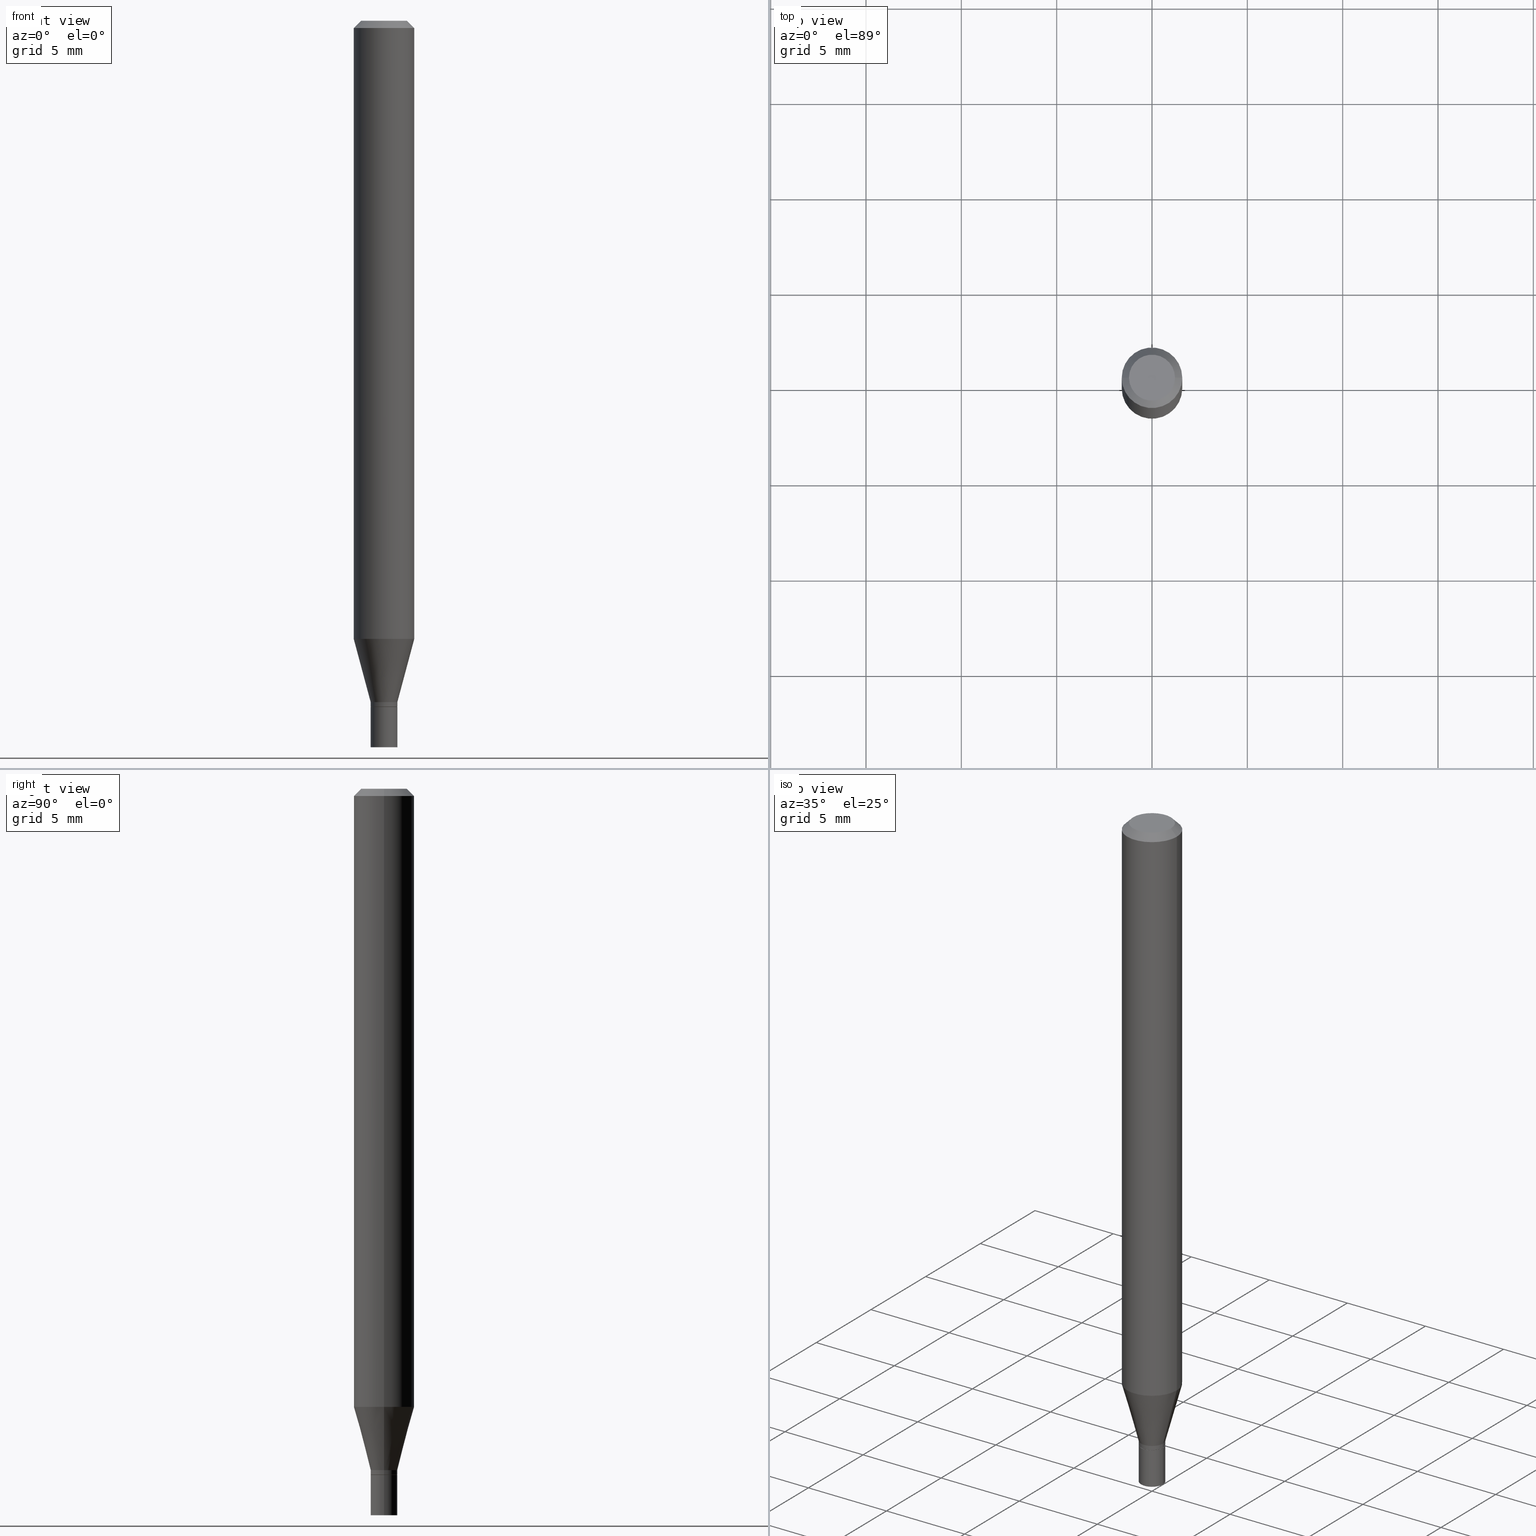
[diagram: canonical four-view strip — front | top / right | iso, engineering-drawing reading convention]
A machine part, canonical four-view strip (front | top / right | iso — engineering-drawing reading convention). The complete STEP part file that produces these views, byte-faithful:
ISO-10303-21;
HEADER;
FILE_DESCRIPTION (( 'STEP AP203' ),
    '1' );
FILE_NAME ('02382.STEP',
    '2024-03-18T20:19:26',
    ( '' ),
    ( '' ),
    'SwSTEP 2.0',
    'SolidWorks 2023',
    '' );
FILE_SCHEMA (( 'CONFIG_CONTROL_DESIGN' ));
ENDSEC;

DATA;
#1 = CARTESIAN_POINT ( 'NONE',  ( 3.668203209277705088E-31, -5.237222008264718399E-17, -0.01499999999999999944 ) ) ;
#2 = CARTESIAN_POINT ( 'NONE',  ( -0.02749999999999992381, -4.717114991418278561E-15, -1.407000000000000028 ) ) ;
#3 = CIRCLE ( 'NONE', #259, 0.02750000000000000014 ) ;
#4 = AXIS2_PLACEMENT_3D ( 'NONE', #119, #344, #20 ) ;
#5 = FACE_OUTER_BOUND ( 'NONE', #100, .T. ) ;
#6 = ORIENTED_EDGE ( 'NONE', *, *, #244, .F. ) ;
#7 = CARTESIAN_POINT ( 'NONE',  ( 3.668203209277704895E-29, -5.237222008264718177E-15, -1.500000000000000222 ) ) ;
#8 = CARTESIAN_POINT ( 'NONE',  ( 0.02699999999999999969, -5.135969049438267025E-15, -1.417000000000000259 ) ) ;
#9 = EDGE_CURVE ( 'NONE', #254, #135, #141, .T. ) ;
#10 = DIRECTION ( 'NONE',  ( 1.000000000000000000, -6.982962677686279332E-15, 0.000000000000000000 ) ) ;
#11 = VERTEX_POINT ( 'NONE', #342 ) ;
#12 = VECTOR ( 'NONE', #151, 39.37007874015748854 ) ;
#13 = LINE ( 'NONE', #138, #113 ) ;
#14 = VECTOR ( 'NONE', #29, 39.37007874015748143 ) ;
#15 = CARTESIAN_POINT ( 'NONE',  ( -0.02699999999999999969, -4.752933291311399907E-15, -1.417000000000000259 ) ) ;
#16 = ORIENTED_EDGE ( 'NONE', *, *, #21, .F. ) ;
#17 = FACE_OUTER_BOUND ( 'NONE', #106, .T. ) ;
#18 = EDGE_LOOP ( 'NONE', ( #278, #317, #411, #250 ) ) ;
#19 = AXIS2_PLACEMENT_3D ( 'NONE', #208, #90, #394 ) ;
#20 = DIRECTION ( 'NONE',  ( 1.000000000000000000, -6.982962677686265922E-15, 4.876176775795935793E-29 ) ) ;
#21 = EDGE_CURVE ( 'NONE', #130, #68, #432, .T. ) ;
#22 = FACE_OUTER_BOUND ( 'NONE', #220, .T. ) ;
#23 = CARTESIAN_POINT ( 'NONE',  ( 0.000000000000000000, 0.000000000000000000, 0.000000000000000000 ) ) ;
#24 = CC_DESIGN_APPROVAL ( #41, ( #269 ) ) ;
#25 = DESIGN_CONTEXT ( 'detailed design', #376, 'design' ) ;
#26 = APPROVAL_DATE_TIME ( #395, #41 ) ;
#27 = PERSON_AND_ORGANIZATION ( #109, #225 ) ;
#28 = ORIENTED_EDGE ( 'NONE', *, *, #216, .F. ) ;
#29 = DIRECTION ( 'NONE',  ( -2.445468806185136877E-29, 3.491481338843145188E-15, 1.000000000000000000 ) ) ;
#30 = AXIS2_PLACEMENT_3D ( 'NONE', #102, #405, #365 ) ;
#31 = AXIS2_PLACEMENT_3D ( 'NONE', #333, #192, #340 ) ;
#32 = EDGE_CURVE ( 'NONE', #169, #195, #237, .T. ) ;
#33 = COORDINATED_UNIVERSAL_TIME_OFFSET ( 5, 0, .BEHIND. ) ;
#34 = ORIENTED_EDGE ( 'NONE', *, *, #298, .F. ) ;
#35 = ORIENTED_EDGE ( 'NONE', *, *, #434, .F. ) ;
#36 = CIRCLE ( 'NONE', #346, 0.02750000000000000014 ) ;
#37 = EDGE_CURVE ( 'NONE', #169, #135, #464, .T. ) ;
#38 = DIRECTION ( 'NONE',  ( 1.000000000000000000, -6.982962677686267499E-15, 4.852736867747366768E-29 ) ) ;
#39 = CARTESIAN_POINT ( 'NONE',  ( 1.116338794773660675E-44, -1.593835938500131952E-30, -4.564927558880287530E-16 ) ) ;
#40 = ORIENTED_EDGE ( 'NONE', *, *, #155, .F. ) ;
#41 = APPROVAL ( #431, 'UNSPECIFIED' ) ;
#42 = CARTESIAN_POINT ( 'NONE',  ( 0.02699999999999999969, -5.135969049438267025E-15, -1.417000000000000259 ) ) ;
#43 = EDGE_LOOP ( 'NONE', ( #314, #262 ) ) ;
#44 = DIRECTION ( 'NONE',  ( 1.000000000000000000, -6.982962677686266711E-15, 4.876176775795935793E-29 ) ) ;
#45 = AXIS2_PLACEMENT_3D ( 'NONE', #212, #362, #110 ) ;
#46 = ORIENTED_EDGE ( 'NONE', *, *, #63, .F. ) ;
#47 = LOCAL_TIME ( 16, 19, 26.00000000000000000, #33 ) ;
#48 = EDGE_CURVE ( 'NONE', #254, #448, #443, .T. ) ;
#49 = EDGE_LOOP ( 'NONE', ( #255, #361, #46, #227 ) ) ;
#50 = CARTESIAN_POINT ( 'NONE',  ( 3.465229298364339647E-29, -4.947429057140738329E-15, -1.417000000000000259 ) ) ;
#51 = EDGE_CURVE ( 'NONE', #94, #11, #36, .T. ) ;
#52 = CIRCLE ( 'NONE', #30, 0.02699999999999999969 ) ;
#53 = CC_DESIGN_APPROVAL ( #341, ( #389 ) ) ;
#54 = ORIENTED_EDGE ( 'NONE', *, *, #241, .T. ) ;
#55 = DATE_TIME_ROLE ( 'classification_date' ) ;
#56 = AXIS2_PLACEMENT_3D ( 'NONE', #323, #325, #366 ) ;
#57 = PRODUCT_RELATED_PRODUCT_CATEGORY ( 'detail', '', ( #367 ) ) ;
#58 = PERSON_AND_ORGANIZATION ( #109, #225 ) ;
#59 = ORIENTED_EDGE ( 'NONE', *, *, #391, .F. ) ;
#60 = PERSON_AND_ORGANIZATION ( #109, #225 ) ;
#61 = ORIENTED_EDGE ( 'NONE', *, *, #229, .T. ) ;
#62 = APPROVAL_DATE_TIME ( #166, #341 ) ;
#63 = EDGE_CURVE ( 'NONE', #195, #223, #103, .T. ) ;
#64 = ORIENTED_EDGE ( 'NONE', *, *, #115, .F. ) ;
#65 = VECTOR ( 'NONE', #369, 39.37007874015748143 ) ;
#66 = APPROVAL_PERSON_ORGANIZATION ( #310, #101, #390 ) ;
#67 = CARTESIAN_POINT ( 'NONE',  ( -0.06250000000000000000, -4.012361532643800373E-15, -1.276378221735089191 ) ) ;
#68 = VERTEX_POINT ( 'NONE', #107 ) ;
#69 = FACE_OUTER_BOUND ( 'NONE', #162, .T. ) ;
#70 = CARTESIAN_POINT ( 'NONE',  ( 0.02749999999999992381, -1.920314736363718267E-16, 1.340948613343878735E-30 ) ) ;
#71 = DIRECTION ( 'NONE',  ( 1.000000000000000000, -6.982962677686262766E-15, 0.000000000000000000 ) ) ;
#72 = AXIS2_PLACEMENT_3D ( 'NONE', #118, #82, #231 ) ;
#73 = DIRECTION ( 'NONE',  ( -2.445468806185136597E-29, 3.491481338843145583E-15, 1.000000000000000000 ) ) ;
#74 = CARTESIAN_POINT ( 'NONE',  ( -0.06250000000000000000, -1.810322271438192615E-15, -0.01499999999999999944 ) ) ;
#75 = VERTEX_POINT ( 'NONE', #416 ) ;
#76 = CARTESIAN_POINT ( 'NONE',  ( 0.06250000000000000000, -4.888073874380388472E-16, -0.01499999999999999944 ) ) ;
#77 = EDGE_LOOP ( 'NONE', ( #290, #54, #442, #64 ) ) ;
#78 = LINE ( 'NONE', #143, #312 ) ;
#79 = ORIENTED_EDGE ( 'NONE', *, *, #434, .T. ) ;
#80 = ORIENTED_EDGE ( 'NONE', *, *, #385, .T. ) ;
#81 =( CONVERSION_BASED_UNIT ( 'INCH', #305 ) LENGTH_UNIT ( ) NAMED_UNIT ( #92 ) );
#82 = DIRECTION ( 'NONE',  ( -2.445468806185136597E-29, 3.491481338843145583E-15, 1.000000000000000000 ) ) ;
#83 = DIRECTION ( 'NONE',  ( 1.000000000000000000, -6.982962677686266711E-15, 0.000000000000000000 ) ) ;
#84 = EDGE_CURVE ( 'NONE', #223, #195, #150, .T. ) ;
#85 =( GEOMETRIC_REPRESENTATION_CONTEXT ( 3 ) GLOBAL_UNCERTAINTY_ASSIGNED_CONTEXT ( ( #197 ) ) GLOBAL_UNIT_ASSIGNED_CONTEXT ( ( #81, #421, #419 ) ) REPRESENTATION_CONTEXT ( 'NONE', 'WORKASPACE' ) );
#86 = MECHANICAL_CONTEXT ( 'NONE', #116, 'mechanical' ) ;
#87 = ADVANCED_BREP_SHAPE_REPRESENTATION ( '02382', ( #393, #375, #466 ), #85 ) ;
#88 = AXIS2_PLACEMENT_3D ( 'NONE', #321, #253, #38 ) ;
#89 = AXIS2_PLACEMENT_3D ( 'NONE', #50, #156, #455 ) ;
#90 = DIRECTION ( 'NONE',  ( -2.445468806185136597E-29, 3.491481338843145583E-15, 1.000000000000000000 ) ) ;
#91 = APPROVAL_STATUS ( 'not_yet_approved' ) ;
#92 = DIMENSIONAL_EXPONENTS ( 1.000000000000000000, 0.000000000000000000, 0.000000000000000000, 0.000000000000000000, 0.000000000000000000, 0.000000000000000000, 0.000000000000000000 ) ;
#93 = ADVANCED_FACE ( 'NONE', ( #69 ), #309, .T. ) ;
#94 = VERTEX_POINT ( 'NONE', #303 ) ;
#95 = DIRECTION ( 'NONE',  ( 1.000000000000000000, -6.982962677686267499E-15, 4.876176775795936353E-29 ) ) ;
#96 = DATE_AND_TIME ( #198, #142 ) ;
#97 = AXIS2_PLACEMENT_3D ( 'NONE', #146, #284, #243 ) ;
#98 = CARTESIAN_POINT ( 'NONE',  ( 3.440774610302487541E-29, -4.912514243752305891E-15, -1.407000000000000028 ) ) ;
#99 = FACE_OUTER_BOUND ( 'NONE', #111, .T. ) ;
#100 = EDGE_LOOP ( 'NONE', ( #328, #451, #28, #200 ) ) ;
#101 = APPROVAL ( #131, 'UNSPECIFIED' ) ;
#102 = CARTESIAN_POINT ( 'NONE',  ( 3.465229298364339647E-29, -4.947429057140738329E-15, -1.417000000000000259 ) ) ;
#103 = CIRCLE ( 'NONE', #406, 0.06250000000000000000 ) ;
#104 = CONICAL_SURFACE ( 'NONE', #268, 0.02699999999999999969, 0.7853981633974739252 ) ;
#105 = CARTESIAN_POINT ( 'NONE',  ( 3.465229298364339647E-29, -4.947429057140738329E-15, -1.417000000000000259 ) ) ;
#106 = EDGE_LOOP ( 'NONE', ( #79, #211, #297, #34 ) ) ;
#107 = CARTESIAN_POINT ( 'NONE',  ( 0.02749999999999992381, -5.137714790107688529E-15, -1.416500000000000314 ) ) ;
#108 = DIRECTION ( 'NONE',  ( -2.445468806185136597E-29, 3.491481338843145583E-15, 1.000000000000000000 ) ) ;
#109 = PERSON ( 'UNSPECIFIED', 'UNSPECIFIED', 'UNSPECIFIED', ('UNSPECIFIED'), ('UNSPECIFIED'), ('UNSPECIFIED') ) ;
#110 = DIRECTION ( 'NONE',  ( 1.000000000000000000, -6.982962677686264344E-15, 0.000000000000000000 ) ) ;
#111 = EDGE_LOOP ( 'NONE', ( #289, #282, #308, #437 ) ) ;
#112 = DIRECTION ( 'NONE',  ( 1.000000000000000000, -6.982962677686266711E-15, 4.876176775795935793E-29 ) ) ;
#113 = VECTOR ( 'NONE', #245, 39.37007874015748143 ) ;
#114 = DIRECTION ( 'NONE',  ( 1.000000000000000000, -6.982962677686266711E-15, 4.876176775795935793E-29 ) ) ;
#115 = EDGE_CURVE ( 'NONE', #11, #94, #277, .T. ) ;
#116 = APPLICATION_CONTEXT ( 'configuration controlled 3d designs of mechanical parts and assemblies' ) ;
#117 = CARTESIAN_POINT ( 'NONE',  ( 0.000000000000000000, 0.000000000000000000, 0.000000000000000000 ) ) ;
#118 = CARTESIAN_POINT ( 'NONE',  ( 0.000000000000000000, 0.000000000000000000, 0.000000000000000000 ) ) ;
#119 = CARTESIAN_POINT ( 'NONE',  ( 3.465229298364339647E-29, -4.947429057140738329E-15, -1.417000000000000259 ) ) ;
#120 = CARTESIAN_POINT ( 'NONE',  ( 3.464006563961246846E-29, -4.945683316471316826E-15, -1.416500000000000314 ) ) ;
#121 = CYLINDRICAL_SURFACE ( 'NONE', #286, 0.02750000000000000014 ) ;
#122 = VECTOR ( 'NONE', #280, 39.37007874015748143 ) ;
#123 = DIRECTION ( 'NONE',  ( -2.445468806185136597E-29, 3.491481338843145583E-15, 1.000000000000000000 ) ) ;
#124 = DIRECTION ( 'NONE',  ( -2.445468806185136597E-29, 3.491481338843145583E-15, 1.000000000000000000 ) ) ;
#125 = ADVANCED_FACE ( 'NONE', ( #266 ), #449, .T. ) ;
#126 = CALENDAR_DATE ( 2024, 18, 3 ) ;
#127 = CONICAL_SURFACE ( 'NONE', #424, 0.06250000000000000000, 0.7853981633974636001 ) ;
#128 = ADVANCED_FACE ( 'NONE', ( #218 ), #295, .T. ) ;
#129 = SHAPE_DEFINITION_REPRESENTATION ( #221, #87 ) ;
#130 = VERTEX_POINT ( 'NONE', #188 ) ;
#131 = APPROVAL_STATUS ( 'not_yet_approved' ) ;
#132 = DIRECTION ( 'NONE',  ( -2.445468806185136597E-29, 3.491481338843145583E-15, 1.000000000000000000 ) ) ;
#133 = CARTESIAN_POINT ( 'NONE',  ( -0.02749999999999992381, -4.364738262031039467E-15, -1.407000000000000028 ) ) ;
#134 = ADVANCED_FACE ( 'NONE', ( #165 ), #127, .T. ) ;
#135 = VERTEX_POINT ( 'NONE', #67 ) ;
#136 = CC_DESIGN_DATE_AND_TIME_ASSIGNMENT ( #96, #161, ( #269 ) ) ;
#137 = DIRECTION ( 'NONE',  ( 1.000000000000000000, -6.982962677686261189E-15, 0.000000000000000000 ) ) ;
#138 = CARTESIAN_POINT ( 'NONE',  ( 0.06250000000000000000, -4.811533449433679005E-16, -0.01499999999999999944 ) ) ;
#139 = ORIENTED_EDGE ( 'NONE', *, *, #216, .T. ) ;
#140 = AXIS2_PLACEMENT_3D ( 'NONE', #412, #327, #440 ) ;
#141 = LINE ( 'NONE', #2, #12 ) ;
#142 = LOCAL_TIME ( 16, 19, 26.00000000000000000, #240 ) ;
#143 = CARTESIAN_POINT ( 'NONE',  ( -0.02699999999999999969, -4.755582518485511109E-15, -1.417000000000000259 ) ) ;
#144 = ORIENTED_EDGE ( 'NONE', *, *, #115, .T. ) ;
#145 = CARTESIAN_POINT ( 'NONE',  ( 0.000000000000000000, 0.000000000000000000, 0.000000000000000000 ) ) ;
#146 = CARTESIAN_POINT ( 'NONE',  ( 3.121343126147216343E-29, -4.456450742493863778E-15, -1.276378221735089191 ) ) ;
#147 = ORIENTED_EDGE ( 'NONE', *, *, #241, .F. ) ;
#148 = CARTESIAN_POINT ( 'NONE',  ( 3.316907271900976096E-16, 0.04749999999999999362, -3.940917415390638222E-16 ) ) ;
#149 = ORIENTED_EDGE ( 'NONE', *, *, #456, .T. ) ;
#150 = CIRCLE ( 'NONE', #441, 0.06250000000000000000 ) ;
#151 = DIRECTION ( 'NONE',  ( -0.2588190451025211836, 5.211531920934547886E-15, 0.9659258262890679791 ) ) ;
#152 = FACE_OUTER_BOUND ( 'NONE', #43, .T. ) ;
#153 = CARTESIAN_POINT ( 'NONE',  ( 3.465229298364339647E-29, -4.947429057140738329E-15, -1.417000000000000259 ) ) ;
#154 = FACE_OUTER_BOUND ( 'NONE', #360, .T. ) ;
#155 = EDGE_CURVE ( 'NONE', #448, #169, #210, .T. ) ;
#156 = DIRECTION ( 'NONE',  ( -2.445468806185136597E-29, 3.491481338843145583E-15, 1.000000000000000000 ) ) ;
#157 = VECTOR ( 'NONE', #199, 39.37007874015748143 ) ;
#158 = PERSON_AND_ORGANIZATION_ROLE ( 'design_owner' ) ;
#159 = DATE_AND_TIME ( #126, #339 ) ;
#160 = EDGE_CURVE ( 'NONE', #68, #130, #224, .T. ) ;
#161 = DATE_TIME_ROLE ( 'creation_date' ) ;
#162 = EDGE_LOOP ( 'NONE', ( #324, #252, #383, #174 ) ) ;
#163 = CIRCLE ( 'NONE', #88, 0.04749999999999999362 ) ;
#164 = COORDINATED_UNIVERSAL_TIME_OFFSET ( 5, 0, .BEHIND. ) ;
#165 = FACE_OUTER_BOUND ( 'NONE', #396, .T. ) ;
#166 = DATE_AND_TIME ( #397, #207 ) ;
#167 = EDGE_CURVE ( 'NONE', #415, #94, #387, .T. ) ;
#168 = CARTESIAN_POINT ( 'NONE',  ( -0.02750000000000000014, 1.953992523340275521E-16, -1.352707149820099181E-30 ) ) ;
#169 = VERTEX_POINT ( 'NONE', #300 ) ;
#170 = CONICAL_SURFACE ( 'NONE', #242, 0.02699999999999999969, 0.7853981633974739252 ) ;
#171 = LINE ( 'NONE', #42, #122 ) ;
#172 = ORIENTED_EDGE ( 'NONE', *, *, #414, .F. ) ;
#173 = DIRECTION ( 'NONE',  ( -2.445468806185136597E-29, 3.491481338843145583E-15, 1.000000000000000000 ) ) ;
#174 = ORIENTED_EDGE ( 'NONE', *, *, #48, .F. ) ;
#175 = ADVANCED_FACE ( 'NONE', ( #402 ), #247, .T. ) ;
#176 = LINE ( 'NONE', #283, #381 ) ;
#177 = DIRECTION ( 'NONE',  ( -2.445468806185136877E-29, 3.491481338843145188E-15, 1.000000000000000000 ) ) ;
#178 = ORIENTED_EDGE ( 'NONE', *, *, #298, .T. ) ;
#179 = PLANE ( 'NONE',  #56 ) ;
#180 = EDGE_CURVE ( 'NONE', #135, #223, #235, .T. ) ;
#181 = PLANE ( 'NONE',  #31 ) ;
#182 = VERTEX_POINT ( 'NONE', #8 ) ;
#183 = CC_DESIGN_PERSON_AND_ORGANIZATION_ASSIGNMENT ( #205, #201, ( #269 ) ) ;
#184 = CARTESIAN_POINT ( 'NONE',  ( 0.02749999999999992381, -5.104545717388677595E-15, -1.407000000000000028 ) ) ;
#185 = DIRECTION ( 'NONE',  ( 0.000000000000000000, 0.000000000000000000, 1.000000000000000000 ) ) ;
#186 = AXIS2_PLACEMENT_3D ( 'NONE', #403, #445, #222 ) ;
#187 = APPROVAL_PERSON_ORGANIZATION ( #271, #41, #358 ) ;
#188 = CARTESIAN_POINT ( 'NONE',  ( -0.02749999999999992381, -4.750284064137290284E-15, -1.416500000000000314 ) ) ;
#189 = DIRECTION ( 'NONE',  ( 1.000000000000000000, -6.982962677686279332E-15, 0.000000000000000000 ) ) ;
#190 = EDGE_LOOP ( 'NONE', ( #446, #61, #228, #334 ) ) ;
#191 = ADVANCED_FACE ( 'NONE', ( #246 ), #444, .T. ) ;
#192 = DIRECTION ( 'NONE',  ( -2.438088387897960049E-29, 3.491481338843145188E-15, 1.000000000000000000 ) ) ;
#193 = APPLICATION_PROTOCOL_DEFINITION ( 'international standard', 'config_control_design', 1994, #376 ) ;
#194 = VECTOR ( 'NONE', #177, 39.37007874015748143 ) ;
#195 = VERTEX_POINT ( 'NONE', #76 ) ;
#196 = DIRECTION ( 'NONE',  ( 1.000000000000000000, -6.982962677686264344E-15, 0.000000000000000000 ) ) ;
#197 = UNCERTAINTY_MEASURE_WITH_UNIT (LENGTH_MEASURE( 1.000000000000000082E-05 ), #81, 'distance_accuracy_value', 'NONE');
#198 = CALENDAR_DATE ( 2024, 18, 3 ) ;
#199 = DIRECTION ( 'NONE',  ( -2.445468806185136877E-29, 3.491481338843145188E-15, 1.000000000000000000 ) ) ;
#200 = ORIENTED_EDGE ( 'NONE', *, *, #315, .F. ) ;
#201 = PERSON_AND_ORGANIZATION_ROLE ( 'creator' ) ;
#202 = VERTEX_POINT ( 'NONE', #217 ) ;
#203 = EDGE_LOOP ( 'NONE', ( #139, #368, #400, #40 ) ) ;
#204 = CARTESIAN_POINT ( 'NONE',  ( 0.02749999999999992381, -5.104545717388677595E-15, -1.407000000000000028 ) ) ;
#205 = PERSON_AND_ORGANIZATION ( #109, #225 ) ;
#206 = AXIS2_PLACEMENT_3D ( 'NONE', #153, #301, #374 ) ;
#207 = LOCAL_TIME ( 16, 19, 26.00000000000000000, #164 ) ;
#208 = CARTESIAN_POINT ( 'NONE',  ( 3.440774610302487541E-29, -4.912514243752305891E-15, -1.407000000000000028 ) ) ;
#209 = ADVANCED_FACE ( 'NONE', ( #99 ), #398, .T. ) ;
#210 = LINE ( 'NONE', #204, #338 ) ;
#211 = ORIENTED_EDGE ( 'NONE', *, *, #256, .T. ) ;
#212 = CARTESIAN_POINT ( 'NONE',  ( 3.440774610302487541E-29, -4.912514243752305891E-15, -1.407000000000000028 ) ) ;
#213 = ORIENTED_EDGE ( 'NONE', *, *, #84, .T. ) ;
#214 = VECTOR ( 'NONE', #288, 39.37007874015748143 ) ;
#215 = VECTOR ( 'NONE', #265, 39.37007874015748143 ) ;
#216 = EDGE_CURVE ( 'NONE', #448, #254, #459, .T. ) ;
#217 = CARTESIAN_POINT ( 'NONE',  ( -0.02750000000000000014, -4.896926280368699739E-15, -1.500000000000000222 ) ) ;
#218 = FACE_OUTER_BOUND ( 'NONE', #18, .T. ) ;
#219 = LINE ( 'NONE', #168, #65 ) ;
#220 = EDGE_LOOP ( 'NONE', ( #35, #413 ) ) ;
#221 = PRODUCT_DEFINITION_SHAPE ( 'NONE', 'NONE',  #269 ) ;
#222 = DIRECTION ( 'NONE',  ( 1.000000000000000000, -6.982962677686264344E-15, 0.000000000000000000 ) ) ;
#223 = VERTEX_POINT ( 'NONE', #74 ) ;
#224 = CIRCLE ( 'NONE', #354, 0.02749999999999992381 ) ;
#225 = ORGANIZATION ( 'UNSPECIFIED', 'UNSPECIFIED', '' ) ;
#226 = CARTESIAN_POINT ( 'NONE',  ( 0.000000000000000000, 0.000000000000000000, 0.000000000000000000 ) ) ;
#227 = ORIENTED_EDGE ( 'NONE', *, *, #32, .F. ) ;
#228 = ORIENTED_EDGE ( 'NONE', *, *, #51, .F. ) ;
#229 = EDGE_CURVE ( 'NONE', #202, #11, #219, .T. ) ;
#230 = LINE ( 'NONE', #261, #215 ) ;
#231 = DIRECTION ( 'NONE',  ( 1.000000000000000000, -6.982962677686266711E-15, 4.876176775795935793E-29 ) ) ;
#232 = AXIS2_PLACEMENT_3D ( 'NONE', #120, #123, #463 ) ;
#233 = ADVANCED_FACE ( 'NONE', ( #251 ), #179, .F. ) ;
#234 = AXIS2_PLACEMENT_3D ( 'NONE', #343, #124, #189 ) ;
#235 = LINE ( 'NONE', #285, #194 ) ;
#236 = CARTESIAN_POINT ( 'NONE',  ( 3.465229298364339647E-29, -4.947429057140738329E-15, -1.417000000000000259 ) ) ;
#237 = LINE ( 'NONE', #348, #14 ) ;
#238 = CIRCLE ( 'NONE', #97, 0.06250000000000000000 ) ;
#239 = APPROVAL_ROLE ( '' ) ;
#240 = COORDINATED_UNIVERSAL_TIME_OFFSET ( 5, 0, .BEHIND. ) ;
#241 = EDGE_CURVE ( 'NONE', #202, #415, #3, .T. ) ;
#242 = AXIS2_PLACEMENT_3D ( 'NONE', #105, #436, #137 ) ;
#243 = DIRECTION ( 'NONE',  ( 1.000000000000000000, -6.982962677686262766E-15, 0.000000000000000000 ) ) ;
#244 = EDGE_CURVE ( 'NONE', #373, #195, #13, .T. ) ;
#245 = DIRECTION ( 'NONE',  ( 0.7071067811865583419, -7.319954787623292333E-15, -0.7071067811865366926 ) ) ;
#246 = FACE_OUTER_BOUND ( 'NONE', #77, .T. ) ;
#247 = CONICAL_SURFACE ( 'NONE', #19, 0.02749999999999992381, 0.2617993877991499074 ) ;
#248 = PRODUCT_DEFINITION_FORMATION_WITH_SPECIFIED_SOURCE ( 'ANY', '', #367, .NOT_KNOWN. ) ;
#249 = DIRECTION ( 'NONE',  ( 1.000000000000000000, -6.982962677686267499E-15, 4.876176775795936353E-29 ) ) ;
#250 = ORIENTED_EDGE ( 'NONE', *, *, #84, .F. ) ;
#251 = FACE_OUTER_BOUND ( 'NONE', #409, .T. ) ;
#252 = ORIENTED_EDGE ( 'NONE', *, *, #21, .T. ) ;
#253 = DIRECTION ( 'NONE',  ( -2.445468806185136597E-29, 3.491481338843145583E-15, 1.000000000000000000 ) ) ;
#254 = VERTEX_POINT ( 'NONE', #133 ) ;
#255 = ORIENTED_EDGE ( 'NONE', *, *, #37, .T. ) ;
#256 = EDGE_CURVE ( 'NONE', #294, #130, #78, .T. ) ;
#257 = DIRECTION ( 'NONE',  ( -2.445468806185136597E-29, 3.491481338843145583E-15, 1.000000000000000000 ) ) ;
#258 = CC_DESIGN_PERSON_AND_ORGANIZATION_ASSIGNMENT ( #58, #425, ( #248 ) ) ;
#259 = AXIS2_PLACEMENT_3D ( 'NONE', #7, #173, #10 ) ;
#260 = CIRCLE ( 'NONE', #234, 0.02750000000000000014 ) ;
#261 = CARTESIAN_POINT ( 'NONE',  ( -0.06250000000000000000, 3.840629472727444916E-16, -0.01499999999999999944 ) ) ;
#262 = ORIENTED_EDGE ( 'NONE', *, *, #352, .T. ) ;
#263 = DIRECTION ( 'NONE',  ( 1.000000000000000000, 0.000000000000000000, 0.000000000000000000 ) ) ;
#264 = CARTESIAN_POINT ( 'NONE',  ( 3.668203209277705088E-31, -5.237222008264718399E-17, -0.01499999999999999944 ) ) ;
#265 = DIRECTION ( 'NONE',  ( -0.7071067811865583419, 2.468850131082370262E-15, -0.7071067811865366926 ) ) ;
#266 = FACE_OUTER_BOUND ( 'NONE', #49, .T. ) ;
#267 = AXIS2_PLACEMENT_3D ( 'NONE', #226, #108, #249 ) ;
#268 = AXIS2_PLACEMENT_3D ( 'NONE', #236, #461, #336 ) ;
#269 = PRODUCT_DEFINITION ( 'UNKNOWN', '', #248, #25 ) ;
#270 = DIRECTION ( 'NONE',  ( -1.000000000000000000, 6.982962677686265922E-15, -4.876176775795935793E-29 ) ) ;
#271 = PERSON_AND_ORGANIZATION ( #109, #225 ) ;
#272 = AXIS2_PLACEMENT_3D ( 'NONE', #98, #132, #356 ) ;
#273 = CARTESIAN_POINT ( 'NONE',  ( 0.000000000000000000, 0.000000000000000000, 0.000000000000000000 ) ) ;
#274 = COORDINATED_UNIVERSAL_TIME_OFFSET ( 5, 0, .BEHIND. ) ;
#275 = DATE_AND_TIME ( #349, #47 ) ;
#276 = EDGE_CURVE ( 'NONE', #135, #169, #238, .T. ) ;
#277 = CIRCLE ( 'NONE', #206, 0.02750000000000000014 ) ;
#278 = ORIENTED_EDGE ( 'NONE', *, *, #180, .F. ) ;
#279 = CC_DESIGN_APPROVAL ( #101, ( #248 ) ) ;
#280 = DIRECTION ( 'NONE',  ( 0.7071067811865656694, -2.468850131082446387E-15, 0.7071067811865294761 ) ) ;
#281 = DIRECTION ( 'NONE',  ( -2.445468806185136597E-29, 3.491481338843145583E-15, 1.000000000000000000 ) ) ;
#282 = ORIENTED_EDGE ( 'NONE', *, *, #244, .T. ) ;
#283 = CARTESIAN_POINT ( 'NONE',  ( -0.02749999999999992381, 1.953992523340270098E-16, -1.352707149820095328E-30 ) ) ;
#284 = DIRECTION ( 'NONE',  ( -2.445468806185136597E-29, 3.491481338843145583E-15, 1.000000000000000000 ) ) ;
#285 = CARTESIAN_POINT ( 'NONE',  ( -0.06250000000000000000, 4.440892098500626162E-16, -3.074334431409316114E-30 ) ) ;
#286 = AXIS2_PLACEMENT_3D ( 'NONE', #23, #453, #112 ) ;
#287 = CIRCLE ( 'NONE', #89, 0.02699999999999999969 ) ;
#288 = DIRECTION ( 'NONE',  ( -2.445468806185136877E-29, 3.491481338843145188E-15, 1.000000000000000000 ) ) ;
#289 = ORIENTED_EDGE ( 'NONE', *, *, #352, .F. ) ;
#290 = ORIENTED_EDGE ( 'NONE', *, *, #229, .F. ) ;
#291 = ADVANCED_FACE ( 'NONE', ( #331 ), #170, .T. ) ;
#292 = DIRECTION ( 'NONE',  ( -0.7071067811865656694, 7.493145998870420424E-15, 0.7071067811865294761 ) ) ;
#293 = DIRECTION ( 'NONE',  ( -2.445468806185136597E-29, 3.491481338843145583E-15, 1.000000000000000000 ) ) ;
#294 = VERTEX_POINT ( 'NONE', #15 ) ;
#295 = CYLINDRICAL_SURFACE ( 'NONE', #72, 0.06250000000000000000 ) ;
#296 = AXIS2_PLACEMENT_3D ( 'NONE', #145, #73, #44 ) ;
#297 = ORIENTED_EDGE ( 'NONE', *, *, #160, .F. ) ;
#298 = EDGE_CURVE ( 'NONE', #182, #68, #171, .T. ) ;
#299 = PLANE ( 'NONE',  #460 ) ;
#300 = CARTESIAN_POINT ( 'NONE',  ( 0.06250000000000000000, -4.892885909849253869E-15, -1.276378221735089191 ) ) ;
#301 = DIRECTION ( 'NONE',  ( -2.445468806185136597E-29, 3.491481338843145583E-15, 1.000000000000000000 ) ) ;
#302 = DIRECTION ( 'NONE',  ( 1.000000000000000000, -6.982962677686267499E-15, 4.852736867747366768E-29 ) ) ;
#303 = CARTESIAN_POINT ( 'NONE',  ( 0.02750000000000000014, -5.139460530777110821E-15, -1.417000000000000259 ) ) ;
#304 = AXIS2_PLACEMENT_3D ( 'NONE', #39, #293, #302 ) ;
#305 = LENGTH_MEASURE_WITH_UNIT ( LENGTH_MEASURE( 0.02539999999999999897 ), #384 );
#306 = APPROVAL_DATE_TIME ( #275, #101 ) ;
#307 = EDGE_CURVE ( 'NONE', #130, #254, #176, .T. ) ;
#308 = ORIENTED_EDGE ( 'NONE', *, *, #63, .T. ) ;
#309 = CYLINDRICAL_SURFACE ( 'NONE', #371, 0.02749999999999992381 ) ;
#310 = PERSON_AND_ORGANIZATION ( #109, #225 ) ;
#311 = CLOSED_SHELL ( 'NONE', ( #439, #420, #191, #233 ) ) ;
#312 = VECTOR ( 'NONE', #292, 39.37007874015748143 ) ;
#313 = CC_DESIGN_SECURITY_CLASSIFICATION ( #389, ( #248 ) ) ;
#314 = ORIENTED_EDGE ( 'NONE', *, *, #391, .T. ) ;
#315 = EDGE_CURVE ( 'NONE', #68, #448, #410, .T. ) ;
#316 = CARTESIAN_POINT ( 'NONE',  ( 3.465229298364339647E-29, -4.947429057140738329E-15, -1.417000000000000259 ) ) ;
#317 = ORIENTED_EDGE ( 'NONE', *, *, #276, .T. ) ;
#318 = CARTESIAN_POINT ( 'NONE',  ( 3.121343126147216343E-29, -4.456450742493863778E-15, -1.276378221735089191 ) ) ;
#319 = CALENDAR_DATE ( 2024, 18, 3 ) ;
#320 = ORIENTED_EDGE ( 'NONE', *, *, #256, .F. ) ;
#321 = CARTESIAN_POINT ( 'NONE',  ( 1.116338794773660675E-44, -1.593835938500131952E-30, -4.564927558880287530E-16 ) ) ;
#322 = AXIS2_PLACEMENT_3D ( 'NONE', #318, #404, #71 ) ;
#323 = CARTESIAN_POINT ( 'NONE',  ( 1.920314736364070050E-16, 0.02749999999999505271, -1.417000000000000259 ) ) ;
#324 = ORIENTED_EDGE ( 'NONE', *, *, #307, .F. ) ;
#325 = DIRECTION ( 'NONE',  ( 2.438088387897960049E-29, -3.491481338843145188E-15, -1.000000000000000000 ) ) ;
#326 = ORIENTED_EDGE ( 'NONE', *, *, #9, .F. ) ;
#327 = DIRECTION ( 'NONE',  ( 2.445468806185136597E-29, -3.491481338843145583E-15, -1.000000000000000000 ) ) ;
#328 = ORIENTED_EDGE ( 'NONE', *, *, #160, .T. ) ;
#329 = CIRCLE ( 'NONE', #304, 0.04749999999999999362 ) ;
#330 = ADVANCED_FACE ( 'NONE', ( #5 ), #438, .T. ) ;
#331 = FACE_OUTER_BOUND ( 'NONE', #351, .T. ) ;
#332 = ORIENTED_EDGE ( 'NONE', *, *, #276, .F. ) ;
#333 = CARTESIAN_POINT ( 'NONE',  ( 3.576687321579069994E-29, -5.368277968210015545E-15, -1.500000000000000222 ) ) ;
#334 = ORIENTED_EDGE ( 'NONE', *, *, #167, .F. ) ;
#335 = EDGE_LOOP ( 'NONE', ( #326, #363, #422, #332 ) ) ;
#336 = DIRECTION ( 'NONE',  ( 1.000000000000000000, -6.982962677686261189E-15, 0.000000000000000000 ) ) ;
#337 = CARTESIAN_POINT ( 'NONE',  ( 0.000000000000000000, 0.000000000000000000, 0.000000000000000000 ) ) ;
#338 = VECTOR ( 'NONE', #426, 39.37007874015748854 ) ;
#339 = LOCAL_TIME ( 16, 19, 26.00000000000000000, #274 ) ;
#340 = DIRECTION ( 'NONE',  ( 1.000000000000000000, -6.982962677686265922E-15, 4.876176775795935793E-29 ) ) ;
#341 = APPROVAL ( #91, 'UNSPECIFIED' ) ;
#342 = CARTESIAN_POINT ( 'NONE',  ( -0.02750000000000000014, -4.896926280368699739E-15, -1.417000000000000259 ) ) ;
#343 = CARTESIAN_POINT ( 'NONE',  ( 3.668203209277704895E-29, -5.237222008264718177E-15, -1.500000000000000222 ) ) ;
#344 = DIRECTION ( 'NONE',  ( -2.438088387897960049E-29, 3.491481338843145188E-15, 1.000000000000000000 ) ) ;
#345 = ADVANCED_FACE ( 'NONE', ( #372 ), #364, .T. ) ;
#346 = AXIS2_PLACEMENT_3D ( 'NONE', #316, #399, #359 ) ;
#347 = COORDINATED_UNIVERSAL_TIME_OFFSET ( 5, 0, .BEHIND. ) ;
#348 = CARTESIAN_POINT ( 'NONE',  ( 0.06250000000000000000, -4.364351673553916694E-16, 3.047610484872459871E-30 ) ) ;
#349 = CALENDAR_DATE ( 2024, 18, 3 ) ;
#350 = CARTESIAN_POINT ( 'NONE',  ( 3.668203209277705088E-31, -5.237222008264718399E-17, -0.01499999999999999944 ) ) ;
#351 = EDGE_LOOP ( 'NONE', ( #320, #80, #178, #16 ) ) ;
#352 = EDGE_CURVE ( 'NONE', #373, #75, #163, .T. ) ;
#353 = PERSON_AND_ORGANIZATION ( #109, #225 ) ;
#354 = AXIS2_PLACEMENT_3D ( 'NONE', #386, #392, #196 ) ;
#355 = APPROVAL_PERSON_ORGANIZATION ( #462, #341, #239 ) ;
#356 = DIRECTION ( 'NONE',  ( 1.000000000000000000, -6.982962677686264344E-15, 0.000000000000000000 ) ) ;
#357 = CC_DESIGN_PERSON_AND_ORGANIZATION_ASSIGNMENT ( #353, #388, ( #248 ) ) ;
#358 = APPROVAL_ROLE ( '' ) ;
#359 = DIRECTION ( 'NONE',  ( 1.000000000000000000, -6.982962677686279332E-15, 0.000000000000000000 ) ) ;
#360 = EDGE_LOOP ( 'NONE', ( #172, #147 ) ) ;
#361 = ORIENTED_EDGE ( 'NONE', *, *, #180, .T. ) ;
#362 = DIRECTION ( 'NONE',  ( -2.445468806185136597E-29, 3.491481338843145583E-15, 1.000000000000000000 ) ) ;
#363 = ORIENTED_EDGE ( 'NONE', *, *, #48, .T. ) ;
#364 = CONICAL_SURFACE ( 'NONE', #45, 0.02749999999999992381, 0.2617993877991499074 ) ;
#365 = DIRECTION ( 'NONE',  ( 1.000000000000000000, -6.982962677686261189E-15, 0.000000000000000000 ) ) ;
#366 = DIRECTION ( 'NONE',  ( -1.000000000000000000, 6.982962677686265922E-15, -4.876176775795935793E-29 ) ) ;
#367 = PRODUCT ( '02382', '02382', '', ( #86 ) ) ;
#368 = ORIENTED_EDGE ( 'NONE', *, *, #9, .T. ) ;
#369 = DIRECTION ( 'NONE',  ( -2.445468806185136877E-29, 3.491481338843145188E-15, 1.000000000000000000 ) ) ;
#370 = ORIENTED_EDGE ( 'NONE', *, *, #51, .T. ) ;
#371 = AXIS2_PLACEMENT_3D ( 'NONE', #273, #428, #95 ) ;
#372 = FACE_OUTER_BOUND ( 'NONE', #203, .T. ) ;
#373 = VERTEX_POINT ( 'NONE', #408 ) ;
#374 = DIRECTION ( 'NONE',  ( 1.000000000000000000, -6.982962677686279332E-15, 0.000000000000000000 ) ) ;
#375 = MANIFOLD_SOLID_BREP ( 'Body-Move/Copy2[2]', #380 ) ;
#376 = APPLICATION_CONTEXT ( 'configuration controlled 3d designs of mechanical parts and assemblies' ) ;
#377 = CARTESIAN_POINT ( 'NONE',  ( 0.02750000000000000014, -5.429253481901091458E-15, -1.500000000000000222 ) ) ;
#378 = DIRECTION ( 'NONE',  ( 1.000000000000000000, -6.982962677686266711E-15, 0.000000000000000000 ) ) ;
#379 = APPLICATION_PROTOCOL_DEFINITION ( 'international standard', 'config_control_design', 1994, #116 ) ;
#380 = CLOSED_SHELL ( 'NONE', ( #330, #407, #209, #125, #345, #175, #128, #134, #423, #401, #291, #93 ) ) ;
#381 = VECTOR ( 'NONE', #447, 39.37007874015748143 ) ;
#382 = LOCAL_TIME ( 16, 19, 26.00000000000000000, #347 ) ;
#383 = ORIENTED_EDGE ( 'NONE', *, *, #315, .T. ) ;
#384 =( LENGTH_UNIT ( ) NAMED_UNIT ( * ) SI_UNIT ( $, .METRE. ) );
#385 = EDGE_CURVE ( 'NONE', #294, #182, #52, .T. ) ;
#386 = CARTESIAN_POINT ( 'NONE',  ( 3.464006563961246846E-29, -4.945683316471316826E-15, -1.416500000000000314 ) ) ;
#387 = LINE ( 'NONE', #458, #157 ) ;
#388 = PERSON_AND_ORGANIZATION_ROLE ( 'creator' ) ;
#389 = SECURITY_CLASSIFICATION ( '', '', #429 ) ;
#390 = APPROVAL_ROLE ( '' ) ;
#391 = EDGE_CURVE ( 'NONE', #75, #373, #329, .T. ) ;
#392 = DIRECTION ( 'NONE',  ( -2.445468806185136597E-29, 3.491481338843145583E-15, 1.000000000000000000 ) ) ;
#393 = MANIFOLD_SOLID_BREP ( 'Body-Move/Copy2[1]', #311 ) ;
#394 = DIRECTION ( 'NONE',  ( 1.000000000000000000, -6.982962677686264344E-15, 0.000000000000000000 ) ) ;
#395 = DATE_AND_TIME ( #319, #382 ) ;
#396 = EDGE_LOOP ( 'NONE', ( #6, #59, #149, #213 ) ) ;
#397 = CALENDAR_DATE ( 2024, 18, 3 ) ;
#398 = CONICAL_SURFACE ( 'NONE', #140, 0.06250000000000000000, 0.7853981633974636001 ) ;
#399 = DIRECTION ( 'NONE',  ( -2.445468806185136597E-29, 3.491481338843145583E-15, 1.000000000000000000 ) ) ;
#400 = ORIENTED_EDGE ( 'NONE', *, *, #37, .F. ) ;
#401 = ADVANCED_FACE ( 'NONE', ( #22 ), #417, .F. ) ;
#402 = FACE_OUTER_BOUND ( 'NONE', #335, .T. ) ;
#403 = CARTESIAN_POINT ( 'NONE',  ( 3.440774610302487541E-29, -4.912514243752305891E-15, -1.407000000000000028 ) ) ;
#404 = DIRECTION ( 'NONE',  ( -2.445468806185136597E-29, 3.491481338843145583E-15, 1.000000000000000000 ) ) ;
#405 = DIRECTION ( 'NONE',  ( -2.445468806185136597E-29, 3.491481338843145583E-15, 1.000000000000000000 ) ) ;
#406 = AXIS2_PLACEMENT_3D ( 'NONE', #1, #281, #378 ) ;
#407 = ADVANCED_FACE ( 'NONE', ( #17 ), #104, .T. ) ;
#408 = CARTESIAN_POINT ( 'NONE',  ( 0.04749999999999999362, -4.035134999187586019E-16, -4.564927558880262878E-16 ) ) ;
#409 = EDGE_LOOP ( 'NONE', ( #370, #144 ) ) ;
#410 = LINE ( 'NONE', #70, #214 ) ;
#411 = ORIENTED_EDGE ( 'NONE', *, *, #32, .T. ) ;
#412 = CARTESIAN_POINT ( 'NONE',  ( 3.668203209277705088E-31, -5.237222008264718399E-17, -0.01499999999999999944 ) ) ;
#413 = ORIENTED_EDGE ( 'NONE', *, *, #385, .F. ) ;
#414 = EDGE_CURVE ( 'NONE', #415, #202, #260, .T. ) ;
#415 = VERTEX_POINT ( 'NONE', #377 ) ;
#416 = CARTESIAN_POINT ( 'NONE',  ( -0.04749999999999999362, 3.578768372314203110E-16, -4.564927558880312182E-16 ) ) ;
#417 = PLANE ( 'NONE',  #4 ) ;
#418 = AXIS2_PLACEMENT_3D ( 'NONE', #337, #257, #114 ) ;
#419 =( NAMED_UNIT ( * ) SI_UNIT ( $, .STERADIAN. ) SOLID_ANGLE_UNIT ( ) );
#420 = ADVANCED_FACE ( 'NONE', ( #154 ), #181, .F. ) ;
#421 =( NAMED_UNIT ( * ) PLANE_ANGLE_UNIT ( ) SI_UNIT ( $, .RADIAN. ) );
#422 = ORIENTED_EDGE ( 'NONE', *, *, #155, .T. ) ;
#423 = ADVANCED_FACE ( 'NONE', ( #152 ), #299, .F. ) ;
#424 = AXIS2_PLACEMENT_3D ( 'NONE', #350, #433, #430 ) ;
#425 = PERSON_AND_ORGANIZATION_ROLE ( 'design_supplier' ) ;
#426 = DIRECTION ( 'NONE',  ( 0.2588190451025211836, 1.565188264969622559E-15, 0.9659258262890679791 ) ) ;
#427 = CC_DESIGN_PERSON_AND_ORGANIZATION_ASSIGNMENT ( #27, #465, ( #389 ) ) ;
#428 = DIRECTION ( 'NONE',  ( -2.445468806185136597E-29, 3.491481338843145583E-15, 1.000000000000000000 ) ) ;
#429 = SECURITY_CLASSIFICATION_LEVEL ( 'unclassified' ) ;
#430 = DIRECTION ( 'NONE',  ( -1.000000000000000000, 6.982962677686266711E-15, 0.000000000000000000 ) ) ;
#431 = APPROVAL_STATUS ( 'not_yet_approved' ) ;
#432 = CIRCLE ( 'NONE', #232, 0.02749999999999992381 ) ;
#433 = DIRECTION ( 'NONE',  ( 2.445468806185136597E-29, -3.491481338843145583E-15, -1.000000000000000000 ) ) ;
#434 = EDGE_CURVE ( 'NONE', #182, #294, #287, .T. ) ;
#435 = CC_DESIGN_PERSON_AND_ORGANIZATION_ASSIGNMENT ( #60, #158, ( #367 ) ) ;
#436 = DIRECTION ( 'NONE',  ( -2.445468806185136597E-29, 3.491481338843145583E-15, 1.000000000000000000 ) ) ;
#437 = ORIENTED_EDGE ( 'NONE', *, *, #456, .F. ) ;
#438 = CYLINDRICAL_SURFACE ( 'NONE', #267, 0.02749999999999992381 ) ;
#439 = ADVANCED_FACE ( 'NONE', ( #457 ), #121, .T. ) ;
#440 = DIRECTION ( 'NONE',  ( -1.000000000000000000, 6.982962677686266711E-15, 0.000000000000000000 ) ) ;
#441 = AXIS2_PLACEMENT_3D ( 'NONE', #264, #454, #83 ) ;
#442 = ORIENTED_EDGE ( 'NONE', *, *, #167, .T. ) ;
#443 = CIRCLE ( 'NONE', #272, 0.02749999999999992381 ) ;
#444 = CYLINDRICAL_SURFACE ( 'NONE', #296, 0.02750000000000000014 ) ;
#445 = DIRECTION ( 'NONE',  ( -2.445468806185136597E-29, 3.491481338843145583E-15, 1.000000000000000000 ) ) ;
#446 = ORIENTED_EDGE ( 'NONE', *, *, #414, .T. ) ;
#447 = DIRECTION ( 'NONE',  ( -2.445468806185136877E-29, 3.491481338843145188E-15, 1.000000000000000000 ) ) ;
#448 = VERTEX_POINT ( 'NONE', #184 ) ;
#449 = CYLINDRICAL_SURFACE ( 'NONE', #418, 0.06250000000000000000 ) ;
#450 = DIRECTION ( 'NONE',  ( 2.438088387897960049E-29, -3.491481338843145188E-15, -1.000000000000000000 ) ) ;
#451 = ORIENTED_EDGE ( 'NONE', *, *, #307, .T. ) ;
#452 = CC_DESIGN_DATE_AND_TIME_ASSIGNMENT ( #159, #55, ( #389 ) ) ;
#453 = DIRECTION ( 'NONE',  ( -2.445468806185136597E-29, 3.491481338843145583E-15, 1.000000000000000000 ) ) ;
#454 = DIRECTION ( 'NONE',  ( -2.445468806185136597E-29, 3.491481338843145583E-15, 1.000000000000000000 ) ) ;
#455 = DIRECTION ( 'NONE',  ( 1.000000000000000000, -6.982962677686261189E-15, 0.000000000000000000 ) ) ;
#456 = EDGE_CURVE ( 'NONE', #75, #223, #230, .T. ) ;
#457 = FACE_OUTER_BOUND ( 'NONE', #190, .T. ) ;
#458 = CARTESIAN_POINT ( 'NONE',  ( 0.02750000000000000014, -1.920314736363723444E-16, 1.340948613343882413E-30 ) ) ;
#459 = CIRCLE ( 'NONE', #186, 0.02749999999999992381 ) ;
#460 = AXIS2_PLACEMENT_3D ( 'NONE', #148, #450, #270 ) ;
#461 = DIRECTION ( 'NONE',  ( -2.445468806185136597E-29, 3.491481338843145583E-15, 1.000000000000000000 ) ) ;
#462 = PERSON_AND_ORGANIZATION ( #109, #225 ) ;
#463 = DIRECTION ( 'NONE',  ( 1.000000000000000000, -6.982962677686264344E-15, 0.000000000000000000 ) ) ;
#464 = CIRCLE ( 'NONE', #322, 0.06250000000000000000 ) ;
#465 = PERSON_AND_ORGANIZATION_ROLE ( 'classification_officer' ) ;
#466 = AXIS2_PLACEMENT_3D ( 'NONE', #117, #185, #263 ) ;
ENDSEC;
END-ISO-10303-21;
